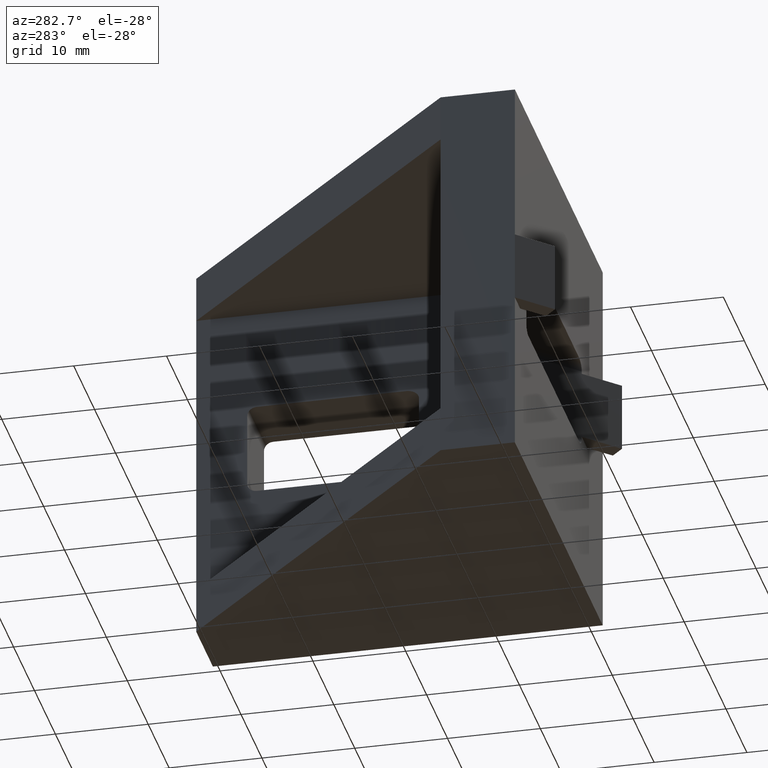
[diagram: clean part render]
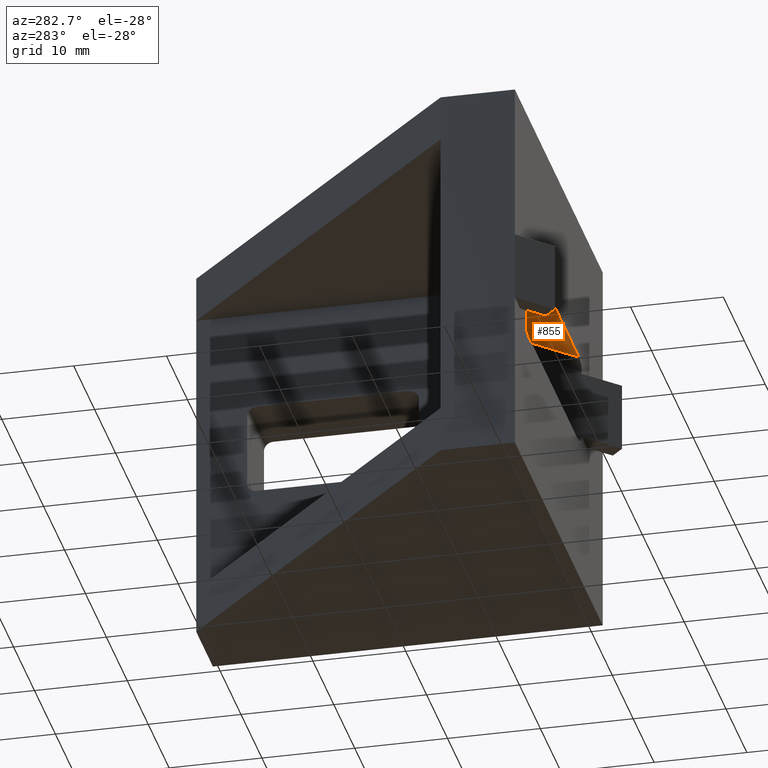
[diagram: same view with one face highlighted and labeled with its STEP entity id]
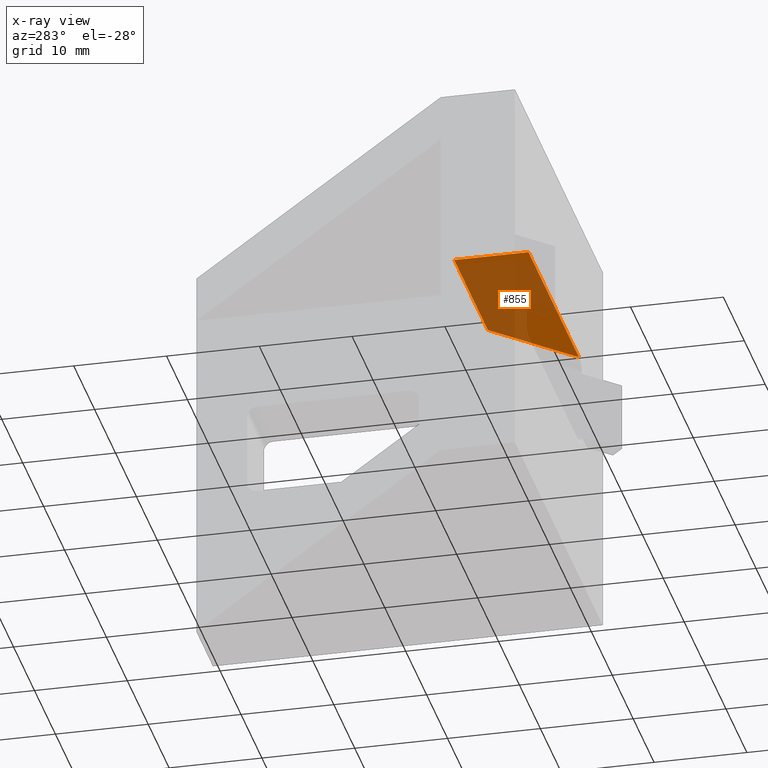
[diagram: x-ray of the same camera — body ghosted, the highlighted face saturated]
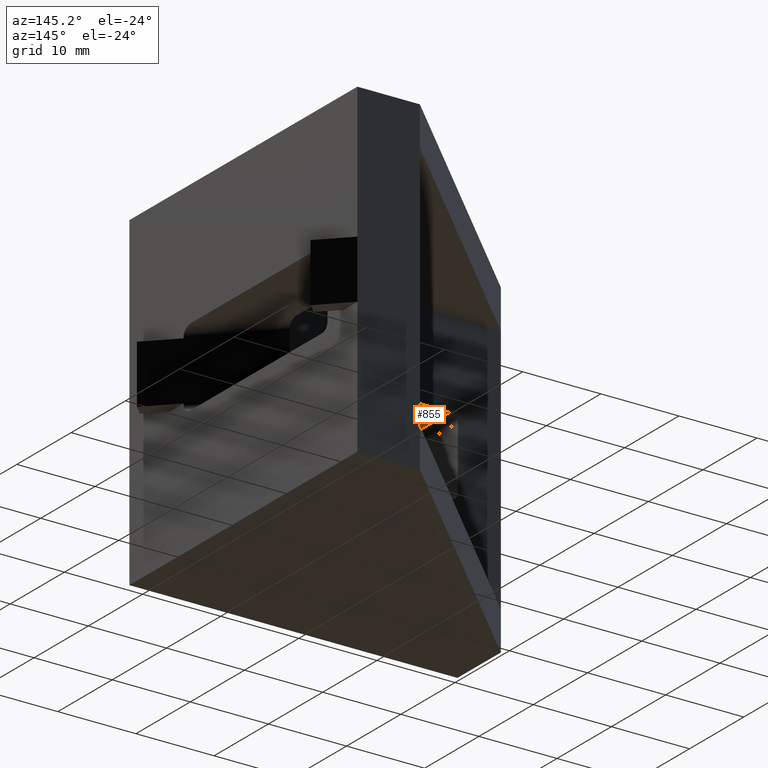
[diagram: same view with one face highlighted and labeled with its STEP entity id]
A machine part, auxiliary view. The second image highlights one B-rep face of the part: STEP entity #855.
The next image is the same camera in x-ray: the body ghosted, the highlighted face saturated — about 73% of this face is hidden behind the body in this view.
A second angle (auxiliary view) of the same face is appended — the face is thin or edge-on in the first view.
In plain terms, the highlighted planar face has unit normal (-0, -0, 1).
Its self-contained STEP definition (entity closure, byte-faithful):
#31=PLANE('',#915);
#75=FACE_OUTER_BOUND('',#121,.T.);
#121=EDGE_LOOP('',(#629,#630,#631,#632));
#180=LINE('',#1255,#288);
#182=LINE('',#1261,#290);
#183=LINE('',#1263,#291);
#184=LINE('',#1264,#292);
#288=VECTOR('',#1018,8.);
#290=VECTOR('',#1024,16.0857864376269);
#291=VECTOR('',#1025,11.3137084989848);
#292=VECTOR('',#1026,24.0857864376269);
#408=VERTEX_POINT('',#1252);
#409=VERTEX_POINT('',#1254);
#411=VERTEX_POINT('',#1260);
#412=VERTEX_POINT('',#1262);
#495=EDGE_CURVE('',#408,#409,#180,.T.);
#498=EDGE_CURVE('',#411,#408,#182,.T.);
#499=EDGE_CURVE('',#412,#411,#183,.T.);
#500=EDGE_CURVE('',#409,#412,#184,.T.);
#629=ORIENTED_EDGE('',*,*,#495,.F.);
#630=ORIENTED_EDGE('',*,*,#498,.F.);
#631=ORIENTED_EDGE('',*,*,#499,.F.);
#632=ORIENTED_EDGE('',*,*,#500,.F.);
#855=ADVANCED_FACE('',(#75),#31,.F.);
#915=AXIS2_PLACEMENT_3D('',#1259,#1022,#1023);
#1018=DIRECTION('',(3.09829681290741E-16,-1.,0.));
#1022=DIRECTION('center_axis',(-8.4016877539201E-16,-2.60309223910139E-31,
1.));
#1023=DIRECTION('ref_axis',(-1.,-3.5527136788005E-16,-7.99360577730113E-16));
#1024=DIRECTION('',(-1.,-3.26536183713281E-16,-8.4016877539201E-16));
#1025=DIRECTION('',(-0.707106781186548,0.707106781186547,-5.94089038420888E-16));
#1026=DIRECTION('',(1.,0.,0.));
#1252=CARTESIAN_POINT('',(-14.5,-13.,5.));
#1254=CARTESIAN_POINT('',(-14.5,-21.,5.));
#1255=CARTESIAN_POINT('',(-14.5,-13.,5.));
#1259=CARTESIAN_POINT('Origin',(3.00000000000004,-13.,5.00000000000001));
#1260=CARTESIAN_POINT('',(1.58578643762694,-13.,5.00000000000001));
#1261=CARTESIAN_POINT('',(8.00000000000002,-13.,5.00000000000002));
#1262=CARTESIAN_POINT('',(9.58578643762695,-21.,5.));
#1263=CARTESIAN_POINT('',(6.29289321881349,-17.7071067811866,5.00000000000002));
#1264=CARTESIAN_POINT('',(-7.58578643762688,-21.,5.));